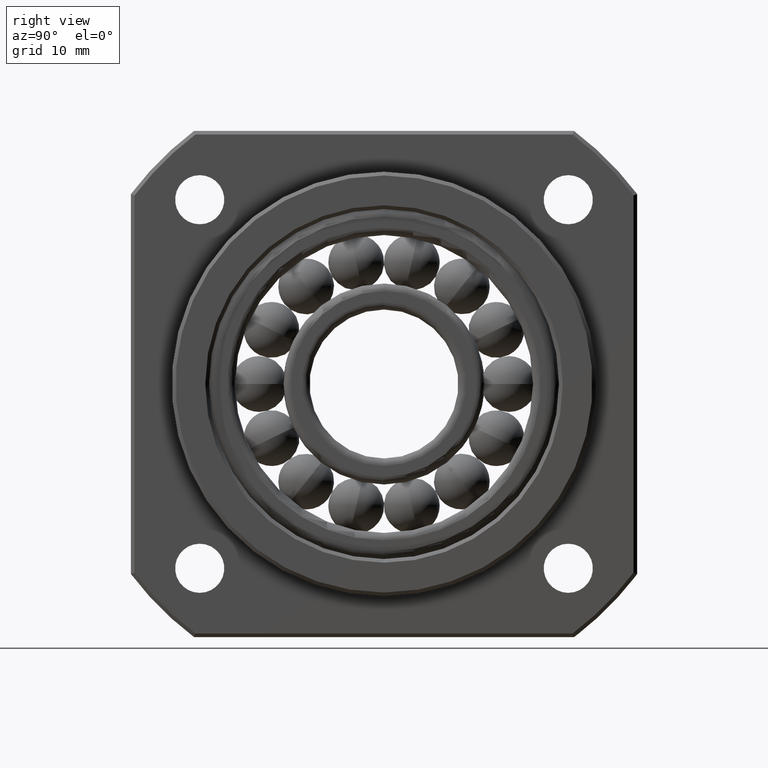
[diagram: clean part render]
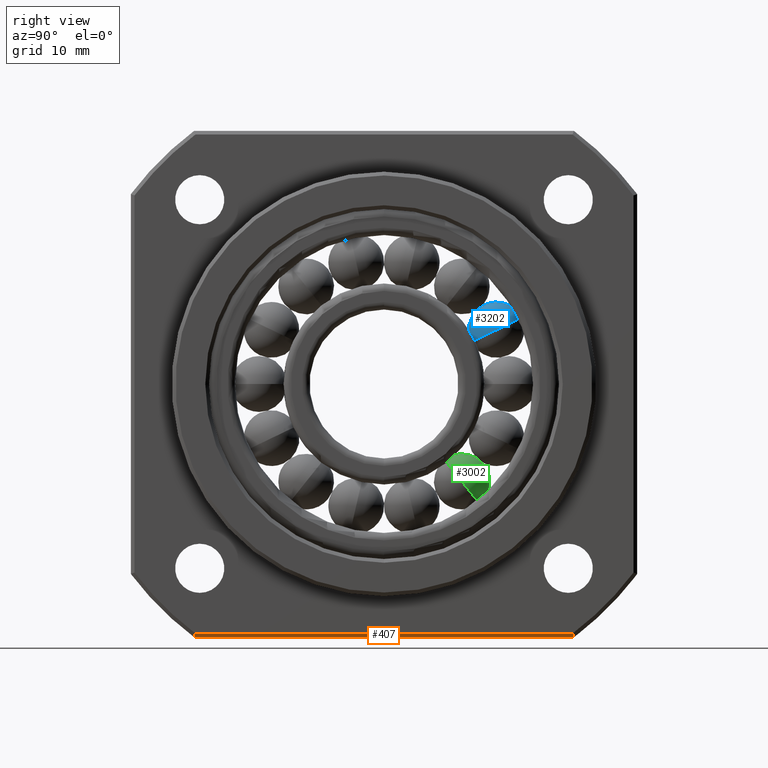
[diagram: same view with three faces highlighted in distinct colors, each labeled with its STEP entity id]
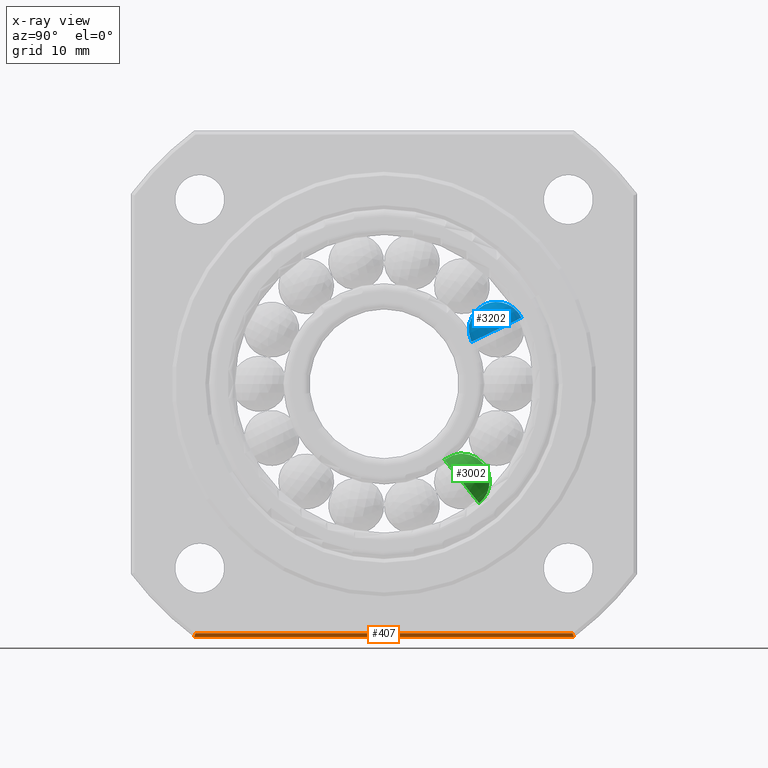
[diagram: x-ray of the same camera — body ghosted, the three highlighted faces saturated]
A machine part, right view with three faces highlighted in distinct colors.
The next image is the same camera in x-ray (body ghosted, the three faces saturated) — at least one of them is partly hidden behind the body in this view.
Their STEP definitions:

[orange] entity #407 — the highlighted planar face has unit normal (0.7071, 0, -0.7071).
#20 = VERTEX_POINT ( 'NONE', #1968 ) ;
#33 = VERTEX_POINT ( 'NONE', #1998 ) ;
#407 = ADVANCED_FACE ( 'NONE', ( #2694 ), #2693, .T. ) ;
#408 = EDGE_CURVE ( 'NONE', #20, #1416, #2688, .T. ) ;
#527 = ORIENTED_EDGE ( 'NONE', *, *, #1405, .F. ) ;
#528 = ORIENTED_EDGE ( 'NONE', *, *, #530, .F. ) ;
#530 = EDGE_CURVE ( 'NONE', #33, #566, #623, .T. ) ;
#531 = ORIENTED_EDGE ( 'NONE', *, *, #1880, .F. ) ;
#533 = EDGE_LOOP ( 'NONE', ( #537, #527, #528, #531 ) ) ;
#537 = ORIENTED_EDGE ( 'NONE', *, *, #408, .T. ) ;
#566 = VERTEX_POINT ( 'NONE', #683 ) ;
#619 = CARTESIAN_POINT ( 'NONE',  ( 11.00000000000000000, -25.33278508178697000, -33.49999999999986500 ) ) ;
#620 = CARTESIAN_POINT ( 'NONE',  ( 10.83336250499827500, -25.38869755658758400, -33.66663749500158800 ) ) ;
#621 = CARTESIAN_POINT ( 'NONE',  ( 10.66669556696549900, -25.44443481101166800, -33.83330443303437100 ) ) ;
#622 = CARTESIAN_POINT ( 'NONE',  ( 10.50000000000000900, -25.50000000000017100, -33.99999999999987900 ) ) ;
#623 = B_SPLINE_CURVE_WITH_KNOTS ( 'NONE', 3,
 ( #622, #621, #620, #619 ),
 .UNSPECIFIED., .F., .F.,
 ( 4, 4 ),
 ( 0.0000000000000000000, 0.0007266091307388480500 ),
 .UNSPECIFIED. ) ;
#683 = CARTESIAN_POINT ( 'NONE',  ( 11.00000000000000000, -25.33278508178697000, -33.49999999999986500 ) ) ;
#834 = CARTESIAN_POINT ( 'NONE',  ( 11.00000000000000000, 25.33278508178694800, -33.49999999999986500 ) ) ;
#840 = DIRECTION ( 'NONE',  ( 0.0000000000000000000, 1.000000000000000000, 0.0000000000000000000 ) ) ;
#841 = VECTOR ( 'NONE', #840, 1000.000000000000000 ) ;
#842 = CARTESIAN_POINT ( 'NONE',  ( 11.00000000000000000, 25.50000000000017100, -33.49999999999986500 ) ) ;
#843 = LINE ( 'NONE', #842, #841 ) ;
#1038 = DIRECTION ( 'NONE',  ( 0.0000000000000000000, -1.000000000000000000, 0.0000000000000000000 ) ) ;
#1039 = VECTOR ( 'NONE', #1038, 1000.000000000000000 ) ;
#1040 = CARTESIAN_POINT ( 'NONE',  ( 10.49999999999999500, -25.50000000000017100, -33.99999999999987900 ) ) ;
#1041 = LINE ( 'NONE', #1040, #1039 ) ;
#1405 = EDGE_CURVE ( 'NONE', #566, #1416, #843, .T. ) ;
#1416 = VERTEX_POINT ( 'NONE', #834 ) ;
#1880 = EDGE_CURVE ( 'NONE', #20, #33, #1041, .T. ) ;
#1968 = CARTESIAN_POINT ( 'NONE',  ( 10.50000000000000900, 25.50000000000017100, -33.99999999999987900 ) ) ;
#1998 = CARTESIAN_POINT ( 'NONE',  ( 10.50000000000000900, -25.50000000000017100, -33.99999999999987900 ) ) ;
#2684 = CARTESIAN_POINT ( 'NONE',  ( 11.00000000000000000, 25.33278508178694800, -33.49999999999986500 ) ) ;
#2685 = CARTESIAN_POINT ( 'NONE',  ( 10.83336250499827500, 25.38869755658756200, -33.66663749500159500 ) ) ;
#2686 = CARTESIAN_POINT ( 'NONE',  ( 10.66669556696549900, 25.44443481101166400, -33.83330443303437100 ) ) ;
#2687 = CARTESIAN_POINT ( 'NONE',  ( 10.50000000000000900, 25.50000000000017100, -33.99999999999987900 ) ) ;
#2688 = B_SPLINE_CURVE_WITH_KNOTS ( 'NONE', 3,
 ( #2687, #2686, #2685, #2684 ),
 .UNSPECIFIED., .F., .F.,
 ( 4, 4 ),
 ( 0.0000000000000000000, 0.0007266091307388529300 ),
 .UNSPECIFIED. ) ;
#2689 = DIRECTION ( 'NONE',  ( -0.7071067811865402500, 0.0000000000000000000, -0.7071067811865549000 ) ) ;
#2690 = DIRECTION ( 'NONE',  ( 0.7071067811865549000, 0.0000000000000000000, -0.7071067811865402500 ) ) ;
#2691 = AXIS2_PLACEMENT_3D ( 'NONE', #2692, #2690, #2689 ) ;
#2692 = CARTESIAN_POINT ( 'NONE',  ( 10.49999999999999500, -34.00000000000000000, -33.99999999999987900 ) ) ;
#2693 = PLANE ( 'NONE',  #2691 ) ;
#2694 = FACE_OUTER_BOUND ( 'NONE', #533, .T. ) ;

[blue] entity #3202 — the highlighted spherical surface has radius 3.75 mm.
#1737 = DIRECTION ( 'NONE',  ( 0.0000000000000000000, 0.9009688679024187000, 0.4338837391175588400 ) ) ;
#1738 = DIRECTION ( 'NONE',  ( 0.0000000000000000000, -0.4338837391175588400, 0.9009688679024187000 ) ) ;
#1739 = AXIS2_PLACEMENT_3D ( 'NONE', #1741, #1738, #1737 ) ;
#1740 = SPHERICAL_SURFACE ( 'NONE', #1739, 3.749999999999999600 ) ;
#1741 = CARTESIAN_POINT ( 'NONE',  ( 10.00000000000000200, 15.09122853736551500, 7.267552630219113600 ) ) ;
#1742 = DIRECTION ( 'NONE',  ( 0.0000000000000000000, 0.9009688679024188100, 0.4338837391175589000 ) ) ;
#1743 = DIRECTION ( 'NONE',  ( 0.0000000000000000000, 0.4338837391175590100, -0.9009688679024187000 ) ) ;
#1744 = CARTESIAN_POINT ( 'NONE',  ( 10.00000000000000200, 15.09122853736551500, 7.267552630219113600 ) ) ;
#1745 = AXIS2_PLACEMENT_3D ( 'NONE', #1744, #1743, #1742 ) ;
#1746 = CIRCLE ( 'NONE', #1745, 3.749999999999999100 ) ;
#1747 = FACE_OUTER_BOUND ( 'NONE', #3115, .T. ) ;
#1748 = CARTESIAN_POINT ( 'NONE',  ( 6.250000000000001800, 15.09122853736551500, 7.267552630219113600 ) ) ;
#1753 = CARTESIAN_POINT ( 'NONE',  ( 13.75000000000000200, 15.09122853736551500, 7.267552630219113600 ) ) ;
#1756 = DIRECTION ( 'NONE',  ( 0.0000000000000000000, -0.9009688679024187000, -0.4338837391175590600 ) ) ;
#1757 = DIRECTION ( 'NONE',  ( 0.0000000000000000000, -0.4338837391175590100, 0.9009688679024189200 ) ) ;
#1758 = CARTESIAN_POINT ( 'NONE',  ( 10.00000000000000200, 15.09122853736551500, 7.267552630219113600 ) ) ;
#1759 = AXIS2_PLACEMENT_3D ( 'NONE', #1758, #1757, #1756 ) ;
#1761 = CIRCLE ( 'NONE', #1759, 3.749999999999999600 ) ;
#3115 = EDGE_LOOP ( 'NONE', ( #3203, #3198 ) ) ;
#3195 = EDGE_CURVE ( 'NONE', #3200, #3199, #1761, .T. ) ;
#3198 = ORIENTED_EDGE ( 'NONE', *, *, #3195, .T. ) ;
#3199 = VERTEX_POINT ( 'NONE', #1753 ) ;
#3200 = VERTEX_POINT ( 'NONE', #1748 ) ;
#3201 = EDGE_CURVE ( 'NONE', #3200, #3199, #1746, .T. ) ;
#3202 = ADVANCED_FACE ( 'NONE', ( #1747 ), #1740, .T. ) ;
#3203 = ORIENTED_EDGE ( 'NONE', *, *, #3201, .F. ) ;

[green] entity #3002 — the highlighted spherical surface has radius 3.75 mm.
#1327 = DIRECTION ( 'NONE',  ( 0.0000000000000000000, 0.6234898018587431400, -0.7818314824680220300 ) ) ;
#1328 = DIRECTION ( 'NONE',  ( 0.0000000000000000000, -0.7818314824680221400, -0.6234898018587431400 ) ) ;
#1329 = CARTESIAN_POINT ( 'NONE',  ( 10.00000000000000200, 10.44345418113394800, -13.09567733133937000 ) ) ;
#1330 = AXIS2_PLACEMENT_3D ( 'NONE', #1329, #1328, #1327 ) ;
#1331 = CIRCLE ( 'NONE', #1330, 3.749999999999999600 ) ;
#1355 = DIRECTION ( 'NONE',  ( 0.0000000000000000000, -0.6234898018587431400, 0.7818314824680220300 ) ) ;
#1356 = DIRECTION ( 'NONE',  ( -0.0000000000000000000, 0.7818314824680222500, 0.6234898018587430300 ) ) ;
#1357 = CARTESIAN_POINT ( 'NONE',  ( 10.00000000000000200, 10.44345418113394800, -13.09567733133937000 ) ) ;
#1358 = AXIS2_PLACEMENT_3D ( 'NONE', #1357, #1356, #1355 ) ;
#1359 = CIRCLE ( 'NONE', #1358, 3.749999999999999600 ) ;
#1383 = CARTESIAN_POINT ( 'NONE',  ( 13.75000000000000200, 10.44345418113394800, -13.09567733133937000 ) ) ;
#1384 = DIRECTION ( 'NONE',  ( 0.0000000000000000000, 0.6234898018587431400, -0.7818314824680221400 ) ) ;
#1385 = DIRECTION ( 'NONE',  ( -0.0000000000000000000, 0.7818314824680221400, 0.6234898018587431400 ) ) ;
#1386 = AXIS2_PLACEMENT_3D ( 'NONE', #1388, #1385, #1384 ) ;
#1387 = SPHERICAL_SURFACE ( 'NONE', #1386, 3.749999999999999600 ) ;
#1388 = CARTESIAN_POINT ( 'NONE',  ( 10.00000000000000200, 10.44345418113394800, -13.09567733133937000 ) ) ;
#1389 = FACE_OUTER_BOUND ( 'NONE', #3003, .T. ) ;
#1390 = CARTESIAN_POINT ( 'NONE',  ( 6.250000000000001800, 10.44345418113394800, -13.09567733133937000 ) ) ;
#2988 = EDGE_CURVE ( 'NONE', #3001, #3005, #1359, .T. ) ;
#2999 = ORIENTED_EDGE ( 'NONE', *, *, #2988, .T. ) ;
#3000 = EDGE_CURVE ( 'NONE', #3001, #3005, #1331, .T. ) ;
#3001 = VERTEX_POINT ( 'NONE', #1390 ) ;
#3002 = ADVANCED_FACE ( 'NONE', ( #1389 ), #1387, .T. ) ;
#3003 = EDGE_LOOP ( 'NONE', ( #3004, #2999 ) ) ;
#3004 = ORIENTED_EDGE ( 'NONE', *, *, #3000, .F. ) ;
#3005 = VERTEX_POINT ( 'NONE', #1383 ) ;